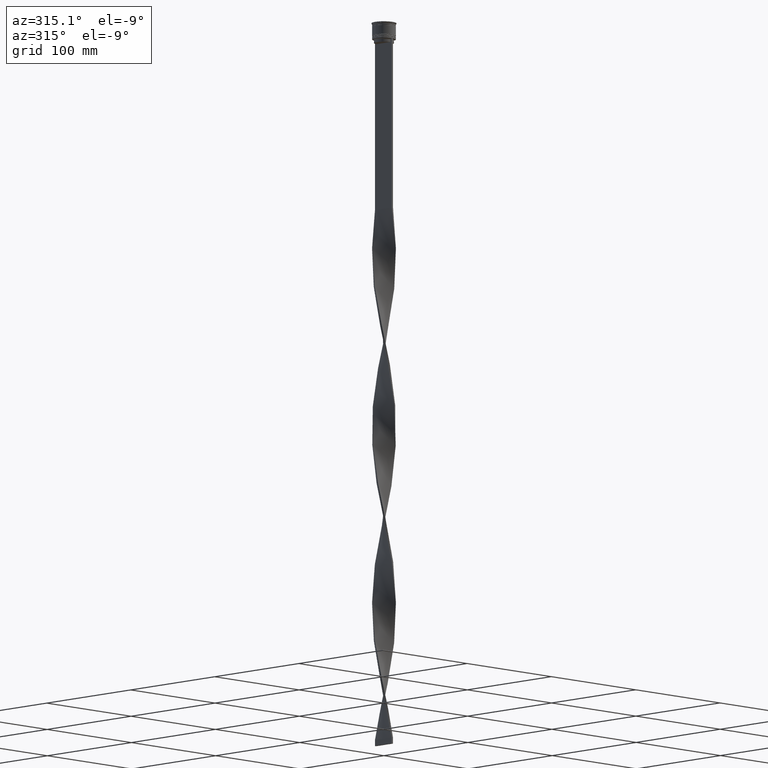
[diagram: clean part render]
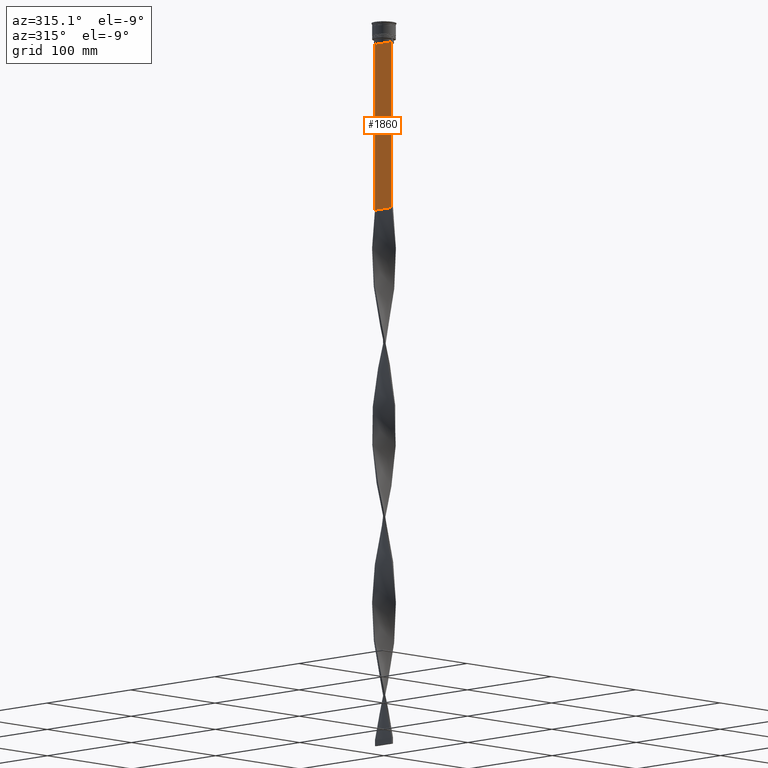
[diagram: same view with one face highlighted and labeled with its STEP entity id]
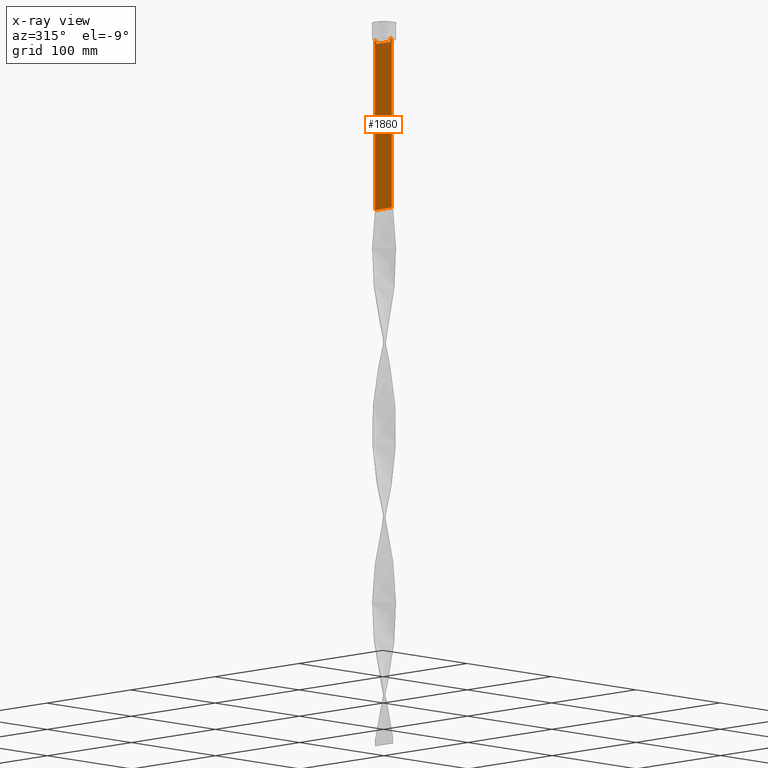
[diagram: x-ray of the same camera — body ghosted, the highlighted face saturated]
A machine part, auxiliary view. The second image highlights one B-rep face of the part: STEP entity #1860.
The next image is the same camera in x-ray: the body ghosted, the highlighted face saturated — about 0% of this face is hidden behind the body in this view.
In plain terms, the highlighted planar face has unit normal (-1, 0, 0).
Its self-contained STEP definition (entity closure, byte-faithful):
#53 = ORIENTED_EDGE ( 'NONE', *, *, #207, .F. ) ;
#73 = EDGE_CURVE ( 'NONE', #296, #1988, #2123, .T. ) ;
#90 = CARTESIAN_POINT ( 'NONE',  ( -0.7499999999999997780, 8.366450860430608927, -14.50000000000000000 ) ) ;
#99 = CARTESIAN_POINT ( 'NONE',  ( -0.7499999999999998890, -10.00000000000000533, -157.9999999999999716 ) ) ;
#161 = VERTEX_POINT ( 'NONE', #4577 ) ;
#184 = CARTESIAN_POINT ( 'NONE',  ( -0.7499999999999997780, -8.533766903463440912, -14.33335220807192201 ) ) ;
#207 = EDGE_CURVE ( 'NONE', #2969, #286, #2874, .T. ) ;
#223 = VECTOR ( 'NONE', #3889, 1000.000000000000000 ) ;
#265 = EDGE_CURVE ( 'NONE', #286, #3118, #3311, .T. ) ;
#272 = DIRECTION ( 'NONE',  ( 0.000000000000000000, 0.000000000000000000, 1.000000000000000000 ) ) ;
#286 = VERTEX_POINT ( 'NONE', #2607 ) ;
#296 = VERTEX_POINT ( 'NONE', #4023 ) ;
#462 = CARTESIAN_POINT ( 'NONE',  ( -0.7499999999999997780, -8.868342573446296839, -14.00000000000000178 ) ) ;
#488 = ORIENTED_EDGE ( 'NONE', *, *, #578, .F. ) ;
#514 = B_SPLINE_CURVE_WITH_KNOTS ( 'NONE', 3,
 ( #3271, #3648, #2212, #822 ),
 .UNSPECIFIED., .F., .F.,
 ( 4, 4 ),
 ( 0.01512225952876174867, 0.01583070519299695222 ),
 .UNSPECIFIED. ) ;
#530 = CARTESIAN_POINT ( 'NONE',  ( -0.7499999999999997780, -10.00000000000000533, -14.00000000000000178 ) ) ;
#578 = EDGE_CURVE ( 'NONE', #2438, #1383, #3428, .T. ) ;
#597 = EDGE_CURVE ( 'NONE', #3327, #4260, #2760, .T. ) ;
#672 = CARTESIAN_POINT ( 'NONE',  ( -0.7499999999999997780, 9.999999999999998224, -157.9999999999999716 ) ) ;
#676 = VECTOR ( 'NONE', #756, 1000.000000000000000 ) ;
#756 = DIRECTION ( 'NONE',  ( -0.000000000000000000, -0.000000000000000000, 1.000000000000000000 ) ) ;
#776 = ORIENTED_EDGE ( 'NONE', *, *, #265, .F. ) ;
#822 = CARTESIAN_POINT ( 'NONE',  ( -0.7499999999999997780, 8.366450860430608927, -14.50000000000000000 ) ) ;
#903 = LINE ( 'NONE', #3724, #3407 ) ;
#963 = CARTESIAN_POINT ( 'NONE',  ( -0.7499999999999997780, 9.999999999999998224, -14.00000000000000178 ) ) ;
#1022 = CARTESIAN_POINT ( 'NONE',  ( -0.7499999999999997780, -10.00000000000000533, 6.056171120131581098 ) ) ;
#1286 = CARTESIAN_POINT ( 'NONE',  ( -0.7499999999999997780, 8.868342573446296839, -14.00000000000000178 ) ) ;
#1339 = AXIS2_PLACEMENT_3D ( 'NONE', #1022, #3807, #272 ) ;
#1383 = VERTEX_POINT ( 'NONE', #2321 ) ;
#1413 = VECTOR ( 'NONE', #4349, 1000.000000000000000 ) ;
#1438 = LINE ( 'NONE', #4254, #1413 ) ;
#1472 = DIRECTION ( 'NONE',  ( 0.000000000000000000, 0.000000000000000000, -1.000000000000000000 ) ) ;
#1483 = VECTOR ( 'NONE', #3753, 1000.000000000000000 ) ;
#1614 = VERTEX_POINT ( 'NONE', #1286 ) ;
#1676 = B_SPLINE_CURVE_WITH_KNOTS ( 'NONE', 3,
 ( #4340, #184, #4063, #462 ),
 .UNSPECIFIED., .F., .F.,
 ( 4, 4 ),
 ( 0.03866293624047253963, 0.03937282246709321309 ),
 .UNSPECIFIED. ) ;
#1784 = CARTESIAN_POINT ( 'NONE',  ( -0.7499999999999997780, -10.00000000000000533, -14.00000000000000178 ) ) ;
#1860 = ADVANCED_FACE ( 'NONE', ( #3121 ), #4542, .T. ) ;
#1863 = VECTOR ( 'NONE', #4265, 1000.000000000000000 ) ;
#1953 = ORIENTED_EDGE ( 'NONE', *, *, #4436, .F. ) ;
#1983 = EDGE_CURVE ( 'NONE', #3118, #161, #2849, .T. ) ;
#1988 = VERTEX_POINT ( 'NONE', #2292 ) ;
#2082 = ORIENTED_EDGE ( 'NONE', *, *, #597, .F. ) ;
#2123 = LINE ( 'NONE', #1784, #223 ) ;
#2174 = CARTESIAN_POINT ( 'NONE',  ( -0.7499999999999997780, 8.400000000000003908, -17.00000000000000000 ) ) ;
#2208 = ORIENTED_EDGE ( 'NONE', *, *, #73, .F. ) ;
#2212 = CARTESIAN_POINT ( 'NONE',  ( -0.7499999999999997780, 8.533766897779926808, -14.33335221373273782 ) ) ;
#2292 = CARTESIAN_POINT ( 'NONE',  ( -0.7499999999999997780, -9.871550030263740894, -14.00000000000000178 ) ) ;
#2321 = CARTESIAN_POINT ( 'NONE',  ( -0.7499999999999997780, 9.871550030263740894, -14.00000000000000178 ) ) ;
#2359 = ORIENTED_EDGE ( 'NONE', *, *, #1983, .F. ) ;
#2371 = EDGE_CURVE ( 'NONE', #1383, #1614, #903, .T. ) ;
#2438 = VERTEX_POINT ( 'NONE', #963 ) ;
#2505 = CARTESIAN_POINT ( 'NONE',  ( -0.7499999999999997780, 8.366450860430608927, 0.000000000000000000 ) ) ;
#2535 = CARTESIAN_POINT ( 'NONE',  ( -0.7499999999999997780, -8.366450860430608927, 0.000000000000000000 ) ) ;
#2550 = CARTESIAN_POINT ( 'NONE',  ( -0.7499999999999997780, -10.00000000000000533, 6.056171120131581098 ) ) ;
#2594 = LINE ( 'NONE', #2550, #3330 ) ;
#2607 = CARTESIAN_POINT ( 'NONE',  ( -0.7499999999999997780, 8.366450860430608927, -17.00000000000000000 ) ) ;
#2714 = DIRECTION ( 'NONE',  ( 0.000000000000000000, 1.000000000000000000, 0.000000000000000000 ) ) ;
#2760 = LINE ( 'NONE', #4427, #4134 ) ;
#2777 = EDGE_LOOP ( 'NONE', ( #3927, #3622, #488, #4539, #2082, #1953, #2883, #2208, #3448, #2359, #776, #53 ) ) ;
#2849 = LINE ( 'NONE', #2535, #676 ) ;
#2874 = LINE ( 'NONE', #2505, #1863 ) ;
#2883 = ORIENTED_EDGE ( 'NONE', *, *, #4529, .F. ) ;
#2938 = VERTEX_POINT ( 'NONE', #530 ) ;
#2942 = EDGE_CURVE ( 'NONE', #161, #296, #1676, .T. ) ;
#2969 = VERTEX_POINT ( 'NONE', #90 ) ;
#3053 = EDGE_CURVE ( 'NONE', #1614, #2969, #514, .T. ) ;
#3118 = VERTEX_POINT ( 'NONE', #4290 ) ;
#3121 = FACE_OUTER_BOUND ( 'NONE', #2777, .T. ) ;
#3166 = VECTOR ( 'NONE', #3693, 1000.000000000000000 ) ;
#3185 = DIRECTION ( 'NONE',  ( 0.000000000000000000, 0.000000000000000000, -1.000000000000000000 ) ) ;
#3193 = VECTOR ( 'NONE', #1472, 1000.000000000000000 ) ;
#3225 = CARTESIAN_POINT ( 'NONE',  ( -0.7499999999999997780, 9.999999999999998224, 6.056171120131581098 ) ) ;
#3271 = CARTESIAN_POINT ( 'NONE',  ( -0.7499999999999997780, 8.868342573446296839, -14.00000000000000178 ) ) ;
#3311 = LINE ( 'NONE', #2174, #3166 ) ;
#3327 = VERTEX_POINT ( 'NONE', #99 ) ;
#3330 = VECTOR ( 'NONE', #3185, 1000.000000000000000 ) ;
#3349 = DIRECTION ( 'NONE',  ( 0.000000000000000000, -1.000000000000000000, 0.000000000000000000 ) ) ;
#3407 = VECTOR ( 'NONE', #3349, 1000.000000000000000 ) ;
#3428 = LINE ( 'NONE', #3736, #1483 ) ;
#3448 = ORIENTED_EDGE ( 'NONE', *, *, #2942, .F. ) ;
#3540 = EDGE_CURVE ( 'NONE', #2438, #4260, #3997, .T. ) ;
#3622 = ORIENTED_EDGE ( 'NONE', *, *, #2371, .F. ) ;
#3648 = CARTESIAN_POINT ( 'NONE',  ( -0.7499999999999997780, 8.701063075415252257, -14.16668448247791723 ) ) ;
#3693 = DIRECTION ( 'NONE',  ( 0.000000000000000000, -1.000000000000000000, 0.000000000000000000 ) ) ;
#3724 = CARTESIAN_POINT ( 'NONE',  ( -0.7499999999999997780, -10.00000000000000533, -14.00000000000000178 ) ) ;
#3736 = CARTESIAN_POINT ( 'NONE',  ( -0.7499999999999997780, -10.00000000000000533, -14.00000000000000178 ) ) ;
#3753 = DIRECTION ( 'NONE',  ( 0.000000000000000000, -1.000000000000000000, 0.000000000000000000 ) ) ;
#3807 = DIRECTION ( 'NONE',  ( -1.000000000000000000, 0.000000000000000000, 0.000000000000000000 ) ) ;
#3889 = DIRECTION ( 'NONE',  ( 0.000000000000000000, -1.000000000000000000, 0.000000000000000000 ) ) ;
#3927 = ORIENTED_EDGE ( 'NONE', *, *, #3053, .F. ) ;
#3997 = LINE ( 'NONE', #3225, #3193 ) ;
#4023 = CARTESIAN_POINT ( 'NONE',  ( -0.7499999999999997780, -8.868342573446296839, -14.00000000000000178 ) ) ;
#4063 = CARTESIAN_POINT ( 'NONE',  ( -0.7499999999999997780, -8.701063080777123204, -14.16668447713511547 ) ) ;
#4134 = VECTOR ( 'NONE', #2714, 1000.000000000000000 ) ;
#4254 = CARTESIAN_POINT ( 'NONE',  ( -0.7499999999999997780, -10.00000000000000533, -14.00000000000000178 ) ) ;
#4260 = VERTEX_POINT ( 'NONE', #672 ) ;
#4265 = DIRECTION ( 'NONE',  ( 0.000000000000000000, 0.000000000000000000, -1.000000000000000000 ) ) ;
#4290 = CARTESIAN_POINT ( 'NONE',  ( -0.7499999999999997780, -8.366450860430608927, -17.00000000000000000 ) ) ;
#4340 = CARTESIAN_POINT ( 'NONE',  ( -0.7499999999999997780, -8.366450860430608927, -14.50000000000000000 ) ) ;
#4349 = DIRECTION ( 'NONE',  ( 0.000000000000000000, -1.000000000000000000, 0.000000000000000000 ) ) ;
#4427 = CARTESIAN_POINT ( 'NONE',  ( -0.7499999999999997780, -10.00000000000000533, -157.9999999999999716 ) ) ;
#4436 = EDGE_CURVE ( 'NONE', #2938, #3327, #2594, .T. ) ;
#4529 = EDGE_CURVE ( 'NONE', #1988, #2938, #1438, .T. ) ;
#4539 = ORIENTED_EDGE ( 'NONE', *, *, #3540, .T. ) ;
#4542 = PLANE ( 'NONE',  #1339 ) ;
#4577 = CARTESIAN_POINT ( 'NONE',  ( -0.7499999999999997780, -8.366450860430608927, -14.50000000000000000 ) ) ;